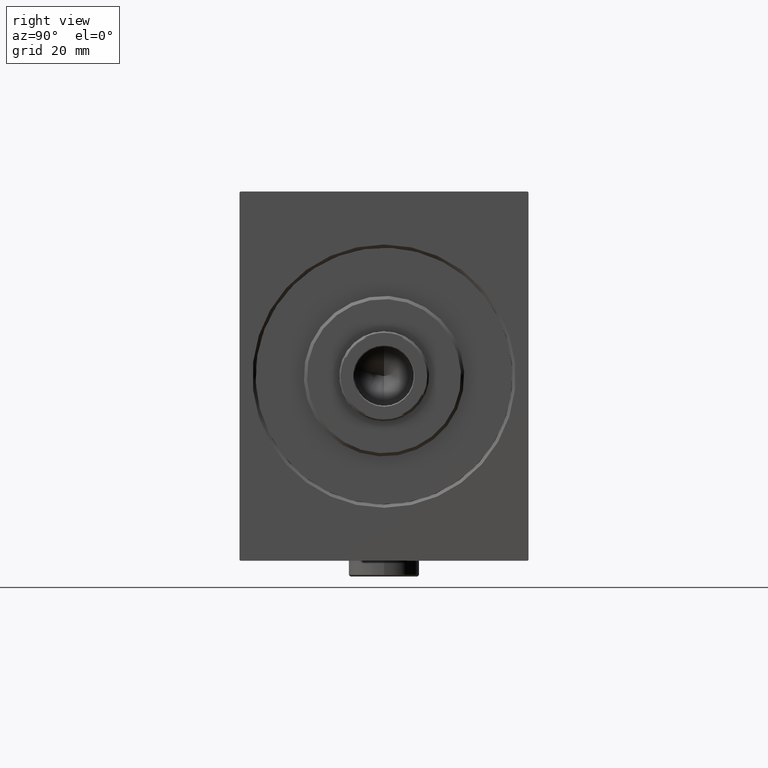
[diagram: clean part render]
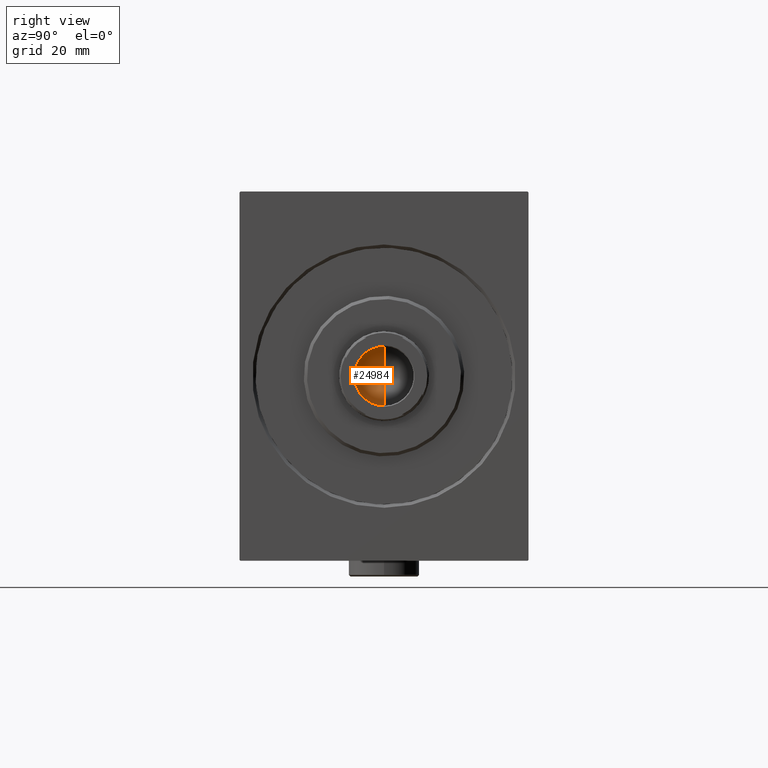
[diagram: same view with one face highlighted and labeled with its STEP entity id]
A machine part, right view. The second image highlights one B-rep face of the part: STEP entity #24984.
In plain terms, the highlighted conical surface has half-angle 59 deg.
Its self-contained STEP definition (entity closure, byte-faithful):
#151 = VECTOR ( 'NONE', #18129, 1000.000000000000000 ) ;
#4728 = EDGE_CURVE ( 'NONE', #8701, #27146, #27641, .T. ) ;
#5083 = FACE_OUTER_BOUND ( 'NONE', #34048, .T. ) ;
#5167 = ORIENTED_EDGE ( 'NONE', *, *, #4728, .F. ) ;
#7525 = EDGE_CURVE ( 'NONE', #8701, #23755, #35822, .T. ) ;
#8701 = VERTEX_POINT ( 'NONE', #42191 ) ;
#9339 = CARTESIAN_POINT ( 'NONE',  ( -9.249999999999994671, 1.132798289211300909E-15, 129.0000000000000284 ) ) ;
#12353 = CARTESIAN_POINT ( 'NONE',  ( -9.249999999999994671, 1.132798289211300909E-15, 129.0000000000000284 ) ) ;
#12433 = AXIS2_PLACEMENT_3D ( 'NONE', #21928, #35864, #31888 ) ;
#14646 = CARTESIAN_POINT ( 'NONE',  ( 0.000000000000000000, 0.000000000000000000, 129.0000000000000284 ) ) ;
#16471 = VECTOR ( 'NONE', #29840, 1000.000000000000000 ) ;
#16640 = ORIENTED_EDGE ( 'NONE', *, *, #20543, .T. ) ;
#18129 = DIRECTION ( 'NONE',  ( 0.8571673007021118895, 0.000000000000000000, 0.5150380749100549327 ) ) ;
#19524 = CIRCLE ( 'NONE', #12433, 9.249999999999994671 ) ;
#20543 = EDGE_CURVE ( 'NONE', #23755, #27146, #19524, .T. ) ;
#21495 = DIRECTION ( 'NONE',  ( -0.000000000000000000, -0.000000000000000000, 1.000000000000000000 ) ) ;
#21928 = CARTESIAN_POINT ( 'NONE',  ( 0.000000000000000000, 0.000000000000000000, 129.0000000000000284 ) ) ;
#23164 = AXIS2_PLACEMENT_3D ( 'NONE', #14646, #21495, #38948 ) ;
#23755 = VERTEX_POINT ( 'NONE', #9339 ) ;
#24984 = ADVANCED_FACE ( 'NONE', ( #5083 ), #37990, .F. ) ;
#27146 = VERTEX_POINT ( 'NONE', #31445 ) ;
#27641 = LINE ( 'NONE', #41570, #151 ) ;
#29840 = DIRECTION ( 'NONE',  ( -0.8571673007021118895, 1.049727191138618079E-16, 0.5150380749100549327 ) ) ;
#31445 = CARTESIAN_POINT ( 'NONE',  ( 9.249999999999994671, 0.000000000000000000, 129.0000000000000284 ) ) ;
#31888 = DIRECTION ( 'NONE',  ( 1.000000000000000000, 0.000000000000000000, 0.000000000000000000 ) ) ;
#34048 = EDGE_LOOP ( 'NONE', ( #5167, #38113, #16640 ) ) ;
#35822 = LINE ( 'NONE', #12353, #16471 ) ;
#35864 = DIRECTION ( 'NONE',  ( -0.000000000000000000, -0.000000000000000000, 1.000000000000000000 ) ) ;
#37990 = CONICAL_SURFACE ( 'NONE', #23164, 9.249999999999994671, 1.029744258676653645 ) ;
#38113 = ORIENTED_EDGE ( 'NONE', *, *, #7525, .T. ) ;
#38948 = DIRECTION ( 'NONE',  ( 1.000000000000000000, 0.000000000000000000, 0.000000000000000000 ) ) ;
#41570 = CARTESIAN_POINT ( 'NONE',  ( 9.249999999999994671, 0.000000000000000000, 129.0000000000000284 ) ) ;
#42191 = CARTESIAN_POINT ( 'NONE',  ( -7.691244471156305908E-15, 0.000000000000000000, 123.4420392739950927 ) ) ;